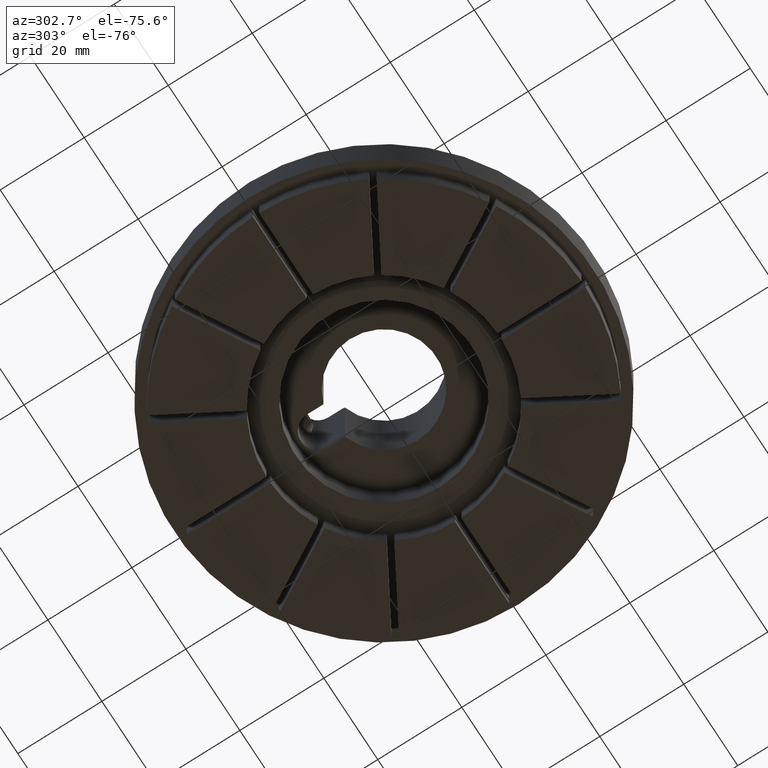
[diagram: clean part render]
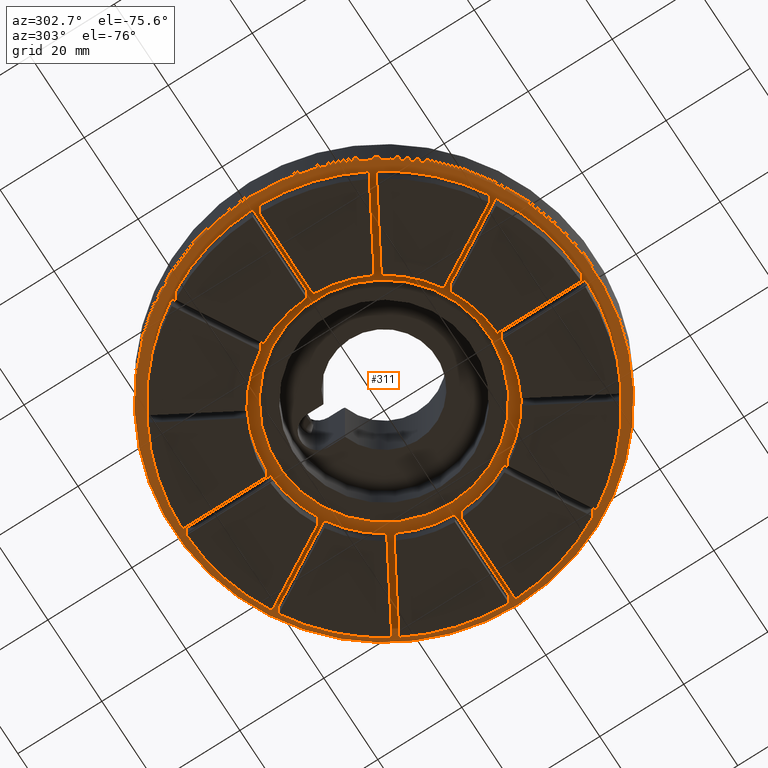
[diagram: same view with one face highlighted and labeled with its STEP entity id]
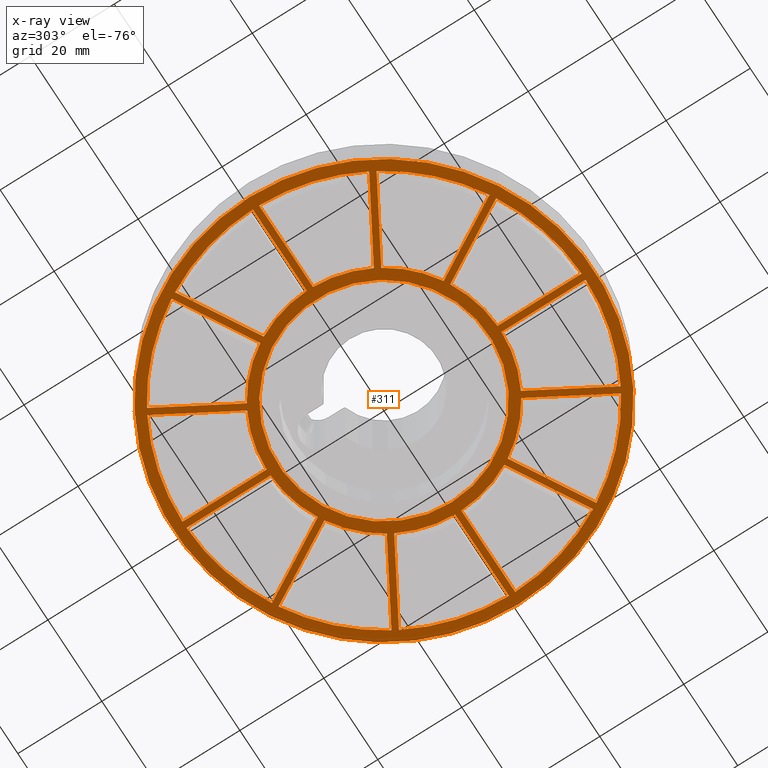
[diagram: x-ray of the same camera — body ghosted, the highlighted face saturated]
A machine part, auxiliary view. The second image highlights one B-rep face of the part: STEP entity #311.
The next image is the same camera in x-ray: the body ghosted, the highlighted face saturated — about 0% of this face is hidden behind the body in this view.
In plain terms, the highlighted planar face has unit normal (0, 0, 1).
Its self-contained STEP definition (entity closure, byte-faithful):
#311 = ADVANCED_FACE( '', ( #462, #463, #464, #465, #466, #467, #468, #469, #470, #471, #472, #473, #474, #475 ), #476, .F. );
#462 = FACE_BOUND( '', #674, .T. );
#463 = FACE_BOUND( '', #675, .T. );
#464 = FACE_BOUND( '', #676, .T. );
#465 = FACE_BOUND( '', #677, .T. );
#466 = FACE_BOUND( '', #678, .T. );
#467 = FACE_BOUND( '', #679, .T. );
#468 = FACE_OUTER_BOUND( '', #680, .T. );
#469 = FACE_BOUND( '', #681, .T. );
#470 = FACE_BOUND( '', #682, .T. );
#471 = FACE_BOUND( '', #683, .T. );
#472 = FACE_BOUND( '', #684, .T. );
#473 = FACE_BOUND( '', #685, .T. );
#474 = FACE_BOUND( '', #686, .T. );
#475 = FACE_BOUND( '', #687, .T. );
#476 = PLANE( '', #688 );
#674 = EDGE_LOOP( '', ( #939, #940, #941, #942 ) );
#675 = EDGE_LOOP( '', ( #943, #944, #945, #946 ) );
#676 = EDGE_LOOP( '', ( #947, #948, #949, #950 ) );
#677 = EDGE_LOOP( '', ( #951, #952, #953, #954 ) );
#678 = EDGE_LOOP( '', ( #955, #956, #957, #958 ) );
#679 = EDGE_LOOP( '', ( #959, #960, #961, #962 ) );
#680 = EDGE_LOOP( '', ( #963 ) );
#681 = EDGE_LOOP( '', ( #964 ) );
#682 = EDGE_LOOP( '', ( #965, #966, #967, #968 ) );
#683 = EDGE_LOOP( '', ( #969, #970, #971, #972 ) );
#684 = EDGE_LOOP( '', ( #973, #974, #975, #976 ) );
#685 = EDGE_LOOP( '', ( #977, #978, #979, #980 ) );
#686 = EDGE_LOOP( '', ( #981, #982, #983, #984 ) );
#687 = EDGE_LOOP( '', ( #985, #986, #987, #988 ) );
#688 = AXIS2_PLACEMENT_3D( '', #989, #990, #991 );
#939 = ORIENTED_EDGE( '', *, *, #1534, .F. );
#940 = ORIENTED_EDGE( '', *, *, #1535, .F. );
#941 = ORIENTED_EDGE( '', *, *, #1536, .F. );
#942 = ORIENTED_EDGE( '', *, *, #1537, .F. );
#943 = ORIENTED_EDGE( '', *, *, #1538, .F. );
#944 = ORIENTED_EDGE( '', *, *, #1539, .F. );
#945 = ORIENTED_EDGE( '', *, *, #1540, .F. );
#946 = ORIENTED_EDGE( '', *, *, #1541, .F. );
#947 = ORIENTED_EDGE( '', *, *, #1542, .F. );
#948 = ORIENTED_EDGE( '', *, *, #1543, .F. );
#949 = ORIENTED_EDGE( '', *, *, #1544, .F. );
#950 = ORIENTED_EDGE( '', *, *, #1545, .F. );
#951 = ORIENTED_EDGE( '', *, *, #1546, .F. );
#952 = ORIENTED_EDGE( '', *, *, #1547, .F. );
#953 = ORIENTED_EDGE( '', *, *, #1548, .F. );
#954 = ORIENTED_EDGE( '', *, *, #1549, .F. );
#955 = ORIENTED_EDGE( '', *, *, #1550, .F. );
#956 = ORIENTED_EDGE( '', *, *, #1551, .F. );
#957 = ORIENTED_EDGE( '', *, *, #1552, .F. );
#958 = ORIENTED_EDGE( '', *, *, #1553, .F. );
#959 = ORIENTED_EDGE( '', *, *, #1554, .F. );
#960 = ORIENTED_EDGE( '', *, *, #1555, .F. );
#961 = ORIENTED_EDGE( '', *, *, #1556, .F. );
#962 = ORIENTED_EDGE( '', *, *, #1557, .F. );
#963 = ORIENTED_EDGE( '', *, *, #1558, .F. );
#964 = ORIENTED_EDGE( '', *, *, #1559, .T. );
#965 = ORIENTED_EDGE( '', *, *, #1560, .F. );
#966 = ORIENTED_EDGE( '', *, *, #1561, .F. );
#967 = ORIENTED_EDGE( '', *, *, #1562, .F. );
#968 = ORIENTED_EDGE( '', *, *, #1563, .F. );
#969 = ORIENTED_EDGE( '', *, *, #1564, .F. );
#970 = ORIENTED_EDGE( '', *, *, #1565, .F. );
#971 = ORIENTED_EDGE( '', *, *, #1566, .F. );
#972 = ORIENTED_EDGE( '', *, *, #1567, .F. );
#973 = ORIENTED_EDGE( '', *, *, #1568, .F. );
#974 = ORIENTED_EDGE( '', *, *, #1569, .F. );
#975 = ORIENTED_EDGE( '', *, *, #1570, .F. );
#976 = ORIENTED_EDGE( '', *, *, #1571, .F. );
#977 = ORIENTED_EDGE( '', *, *, #1572, .F. );
#978 = ORIENTED_EDGE( '', *, *, #1573, .F. );
#979 = ORIENTED_EDGE( '', *, *, #1574, .F. );
#980 = ORIENTED_EDGE( '', *, *, #1575, .F. );
#981 = ORIENTED_EDGE( '', *, *, #1576, .F. );
#982 = ORIENTED_EDGE( '', *, *, #1577, .F. );
#983 = ORIENTED_EDGE( '', *, *, #1578, .F. );
#984 = ORIENTED_EDGE( '', *, *, #1579, .F. );
#985 = ORIENTED_EDGE( '', *, *, #1580, .F. );
#986 = ORIENTED_EDGE( '', *, *, #1581, .F. );
#987 = ORIENTED_EDGE( '', *, *, #1582, .F. );
#988 = ORIENTED_EDGE( '', *, *, #1583, .F. );
#989 = CARTESIAN_POINT( '', ( 0.000000000000000, 0.000000000000000, 6.00000000000000 ) );
#990 = DIRECTION( '', ( 0.000000000000000, 0.000000000000000, 1.00000000000000 ) );
#991 = DIRECTION( '', ( 1.00000000000000, 0.000000000000000, 0.000000000000000 ) );
#1534 = EDGE_CURVE( '', #1761, #1762, #1763, .F. );
#1535 = EDGE_CURVE( '', #1764, #1761, #1765, .T. );
#1536 = EDGE_CURVE( '', #1766, #1764, #1767, .T. );
#1537 = EDGE_CURVE( '', #1762, #1766, #1768, .T. );
#1538 = EDGE_CURVE( '', #1769, #1770, #1771, .F. );
#1539 = EDGE_CURVE( '', #1772, #1769, #1773, .T. );
#1540 = EDGE_CURVE( '', #1774, #1772, #1775, .T. );
#1541 = EDGE_CURVE( '', #1770, #1774, #1776, .T. );
#1542 = EDGE_CURVE( '', #1777, #1778, #1779, .F. );
#1543 = EDGE_CURVE( '', #1780, #1777, #1781, .T. );
#1544 = EDGE_CURVE( '', #1782, #1780, #1783, .T. );
#1545 = EDGE_CURVE( '', #1778, #1782, #1784, .T. );
#1546 = EDGE_CURVE( '', #1785, #1786, #1787, .F. );
#1547 = EDGE_CURVE( '', #1788, #1785, #1789, .T. );
#1548 = EDGE_CURVE( '', #1790, #1788, #1791, .T. );
#1549 = EDGE_CURVE( '', #1786, #1790, #1792, .T. );
#1550 = EDGE_CURVE( '', #1793, #1794, #1795, .F. );
#1551 = EDGE_CURVE( '', #1796, #1793, #1797, .T. );
#1552 = EDGE_CURVE( '', #1798, #1796, #1799, .T. );
#1553 = EDGE_CURVE( '', #1794, #1798, #1800, .T. );
#1554 = EDGE_CURVE( '', #1801, #1802, #1803, .F. );
#1555 = EDGE_CURVE( '', #1804, #1801, #1805, .T. );
#1556 = EDGE_CURVE( '', #1806, #1804, #1807, .T. );
#1557 = EDGE_CURVE( '', #1802, #1806, #1808, .T. );
#1558 = EDGE_CURVE( '', #1809, #1809, #1810, .T. );
#1559 = EDGE_CURVE( '', #1811, #1811, #1812, .T. );
#1560 = EDGE_CURVE( '', #1813, #1814, #1815, .F. );
#1561 = EDGE_CURVE( '', #1816, #1813, #1817, .T. );
#1562 = EDGE_CURVE( '', #1818, #1816, #1819, .T. );
#1563 = EDGE_CURVE( '', #1814, #1818, #1820, .T. );
#1564 = EDGE_CURVE( '', #1821, #1822, #1823, .F. );
#1565 = EDGE_CURVE( '', #1824, #1821, #1825, .T. );
#1566 = EDGE_CURVE( '', #1826, #1824, #1827, .T. );
#1567 = EDGE_CURVE( '', #1822, #1826, #1828, .T. );
#1568 = EDGE_CURVE( '', #1829, #1830, #1831, .F. );
#1569 = EDGE_CURVE( '', #1832, #1829, #1833, .T. );
#1570 = EDGE_CURVE( '', #1834, #1832, #1835, .T. );
#1571 = EDGE_CURVE( '', #1830, #1834, #1836, .T. );
#1572 = EDGE_CURVE( '', #1837, #1838, #1839, .F. );
#1573 = EDGE_CURVE( '', #1840, #1837, #1841, .T. );
#1574 = EDGE_CURVE( '', #1842, #1840, #1843, .T. );
#1575 = EDGE_CURVE( '', #1838, #1842, #1844, .T. );
#1576 = EDGE_CURVE( '', #1845, #1846, #1847, .F. );
#1577 = EDGE_CURVE( '', #1848, #1845, #1849, .T. );
#1578 = EDGE_CURVE( '', #1850, #1848, #1851, .T. );
#1579 = EDGE_CURVE( '', #1846, #1850, #1852, .T. );
#1580 = EDGE_CURVE( '', #1853, #1854, #1855, .F. );
#1581 = EDGE_CURVE( '', #1856, #1853, #1857, .T. );
#1582 = EDGE_CURVE( '', #1858, #1856, #1859, .T. );
#1583 = EDGE_CURVE( '', #1854, #1858, #1860, .T. );
#1761 = VERTEX_POINT( '', #2246 );
#1762 = VERTEX_POINT( '', #2247 );
#1763 = CIRCLE( '', #2248, 47.5000000000000 );
#1764 = VERTEX_POINT( '', #2249 );
#1765 = LINE( '', #2250, #2251 );
#1766 = VERTEX_POINT( '', #2252 );
#1767 = CIRCLE( '', #2253, 27.5000000000000 );
#1768 = LINE( '', #2254, #2255 );
#1769 = VERTEX_POINT( '', #2256 );
#1770 = VERTEX_POINT( '', #2257 );
#1771 = CIRCLE( '', #2258, 47.5000000000000 );
#1772 = VERTEX_POINT( '', #2259 );
#1773 = LINE( '', #2260, #2261 );
#1774 = VERTEX_POINT( '', #2262 );
#1775 = CIRCLE( '', #2263, 27.5000000000000 );
#1776 = LINE( '', #2264, #2265 );
#1777 = VERTEX_POINT( '', #2266 );
#1778 = VERTEX_POINT( '', #2267 );
#1779 = CIRCLE( '', #2268, 47.5000000000000 );
#1780 = VERTEX_POINT( '', #2269 );
#1781 = LINE( '', #2270, #2271 );
#1782 = VERTEX_POINT( '', #2272 );
#1783 = CIRCLE( '', #2273, 27.5000000000000 );
#1784 = LINE( '', #2274, #2275 );
#1785 = VERTEX_POINT( '', #2276 );
#1786 = VERTEX_POINT( '', #2277 );
#1787 = CIRCLE( '', #2278, 47.5000000000000 );
#1788 = VERTEX_POINT( '', #2279 );
#1789 = LINE( '', #2280, #2281 );
#1790 = VERTEX_POINT( '', #2282 );
#1791 = CIRCLE( '', #2283, 27.5000000000000 );
#1792 = LINE( '', #2284, #2285 );
#1793 = VERTEX_POINT( '', #2286 );
#1794 = VERTEX_POINT( '', #2287 );
#1795 = CIRCLE( '', #2288, 47.5000000000000 );
#1796 = VERTEX_POINT( '', #2289 );
#1797 = LINE( '', #2290, #2291 );
#1798 = VERTEX_POINT( '', #2292 );
#1799 = CIRCLE( '', #2293, 27.5000000000000 );
#1800 = LINE( '', #2294, #2295 );
#1801 = VERTEX_POINT( '', #2296 );
#1802 = VERTEX_POINT( '', #2297 );
#1803 = CIRCLE( '', #2298, 47.5000000000000 );
#1804 = VERTEX_POINT( '', #2299 );
#1805 = LINE( '', #2300, #2301 );
#1806 = VERTEX_POINT( '', #2302 );
#1807 = CIRCLE( '', #2303, 27.5000000000000 );
#1808 = LINE( '', #2304, #2305 );
#1809 = VERTEX_POINT( '', #2306 );
#1810 = CIRCLE( '', #2307, 50.0000000000000 );
#1811 = VERTEX_POINT( '', #2308 );
#1812 = CIRCLE( '', #2309, 25.0000000000000 );
#1813 = VERTEX_POINT( '', #2310 );
#1814 = VERTEX_POINT( '', #2311 );
#1815 = CIRCLE( '', #2312, 47.5000000000000 );
#1816 = VERTEX_POINT( '', #2313 );
#1817 = LINE( '', #2314, #2315 );
#1818 = VERTEX_POINT( '', #2316 );
#1819 = CIRCLE( '', #2317, 27.5000000000000 );
#1820 = LINE( '', #2318, #2319 );
#1821 = VERTEX_POINT( '', #2320 );
#1822 = VERTEX_POINT( '', #2321 );
#1823 = CIRCLE( '', #2322, 47.5000000000000 );
#1824 = VERTEX_POINT( '', #2323 );
#1825 = LINE( '', #2324, #2325 );
#1826 = VERTEX_POINT( '', #2326 );
#1827 = CIRCLE( '', #2327, 27.5000000000000 );
#1828 = LINE( '', #2328, #2329 );
#1829 = VERTEX_POINT( '', #2330 );
#1830 = VERTEX_POINT( '', #2331 );
#1831 = CIRCLE( '', #2332, 47.5000000000000 );
#1832 = VERTEX_POINT( '', #2333 );
#1833 = LINE( '', #2334, #2335 );
#1834 = VERTEX_POINT( '', #2336 );
#1835 = CIRCLE( '', #2337, 27.5000000000000 );
#1836 = LINE( '', #2338, #2339 );
#1837 = VERTEX_POINT( '', #2340 );
#1838 = VERTEX_POINT( '', #2341 );
#1839 = CIRCLE( '', #2342, 47.5000000000000 );
#1840 = VERTEX_POINT( '', #2343 );
#1841 = LINE( '', #2344, #2345 );
#1842 = VERTEX_POINT( '', #2346 );
#1843 = CIRCLE( '', #2347, 27.5000000000000 );
#1844 = LINE( '', #2348, #2349 );
#1845 = VERTEX_POINT( '', #2350 );
#1846 = VERTEX_POINT( '', #2351 );
#1847 = CIRCLE( '', #2352, 47.5000000000000 );
#1848 = VERTEX_POINT( '', #2353 );
#1849 = LINE( '', #2354, #2355 );
#1850 = VERTEX_POINT( '', #2356 );
#1851 = CIRCLE( '', #2357, 27.5000000000000 );
#1852 = LINE( '', #2358, #2359 );
#1853 = VERTEX_POINT( '', #2360 );
#1854 = VERTEX_POINT( '', #2361 );
#1855 = CIRCLE( '', #2362, 47.5000000000000 );
#1856 = VERTEX_POINT( '', #2363 );
#1857 = LINE( '', #2364, #2365 );
#1858 = VERTEX_POINT( '', #2366 );
#1859 = CIRCLE( '', #2367, 27.5000000000000 );
#1860 = LINE( '', #2368, #2369 );
#2246 = CARTESIAN_POINT( '', ( 40.7560785781263, -24.3965583419792, 6.00000000000001 ) );
#2247 = CARTESIAN_POINT( '', ( 24.3965583419792, -40.7560785781263, 6.00000000000000 ) );
#2248 = AXIS2_PLACEMENT_3D( '', #2743, #2744, #2745 );
#2249 = CARTESIAN_POINT( '', ( 23.4318398784887, -14.3944044652381, 6.00000000000000 ) );
#2250 = CARTESIAN_POINT( '', ( -0.375000000000004, -0.649519052838335, 6.00000000000000 ) );
#2251 = VECTOR( '', #2746, 1000.00000000000 );
#2252 = CARTESIAN_POINT( '', ( 14.3944044652381, -23.4318398784887, 6.00000000000001 ) );
#2253 = AXIS2_PLACEMENT_3D( '', #2747, #2748, #2749 );
#2254 = CARTESIAN_POINT( '', ( 0.649519052838330, 0.375000000000000, 6.00000000000000 ) );
#2255 = VECTOR( '', #2750, 1000.00000000000 );
#2256 = CARTESIAN_POINT( '', ( -0.750000000000035, -47.4940785782818, 6.00000000000001 ) );
#2257 = CARTESIAN_POINT( '', ( -23.0975202363026, -41.5060785781263, 6.00000000000000 ) );
#2258 = AXIS2_PLACEMENT_3D( '', #2751, #2752, #2753 );
#2259 = CARTESIAN_POINT( '', ( -0.750000000000025, -27.4897708247995, 6.00000000000000 ) );
#2260 = CARTESIAN_POINT( '', ( -0.750000000000007, 4.99600361081325E-016, 6.00000000000000 ) );
#2261 = VECTOR( '', #2754, 1000.00000000000 );
#2262 = CARTESIAN_POINT( '', ( -13.0953663595615, -24.1818398784887, 6.00000000000001 ) );
#2263 = AXIS2_PLACEMENT_3D( '', #2755, #2756, #2757 );
#2264 = CARTESIAN_POINT( '', ( 0.649519052838329, -0.375000000000001, 6.00000000000000 ) );
#2265 = VECTOR( '', #2758, 1000.00000000000 );
#2266 = CARTESIAN_POINT( '', ( -41.5060785781263, -23.0975202363025, 6.00000000000001 ) );
#2267 = CARTESIAN_POINT( '', ( -47.4940785782818, -0.749999999999994, 6.00000000000000 ) );
#2268 = AXIS2_PLACEMENT_3D( '', #2759, #2760, #2761 );
#2269 = CARTESIAN_POINT( '', ( -24.1818398784887, -13.0953663595614, 6.00000000000000 ) );
#2270 = CARTESIAN_POINT( '', ( -0.375000000000004, 0.649519052838336, 6.00000000000000 ) );
#2271 = VECTOR( '', #2762, 1000.00000000000 );
#2272 = CARTESIAN_POINT( '', ( -27.4897708247995, -0.749999999999997, 6.00000000000001 ) );
#2273 = AXIS2_PLACEMENT_3D( '', #2763, #2764, #2765 );
#2274 = CARTESIAN_POINT( '', ( -9.18485099360515E-017, -0.750000000000000, 6.00000000000000 ) );
#2275 = VECTOR( '', #2766, 1000.00000000000 );
#2276 = CARTESIAN_POINT( '', ( -40.7560785781263, 24.3965583419792, 6.00000000000001 ) );
#2277 = CARTESIAN_POINT( '', ( -24.3965583419792, 40.7560785781263, 6.00000000000000 ) );
#2278 = AXIS2_PLACEMENT_3D( '', #2767, #2768, #2769 );
#2279 = CARTESIAN_POINT( '', ( -23.4318398784887, 14.3944044652381, 6.00000000000000 ) );
#2280 = CARTESIAN_POINT( '', ( 0.375000000000004, 0.649519052838336, 6.00000000000000 ) );
#2281 = VECTOR( '', #2770, 1000.00000000000 );
#2282 = CARTESIAN_POINT( '', ( -14.3944044652381, 23.4318398784887, 6.00000000000001 ) );
#2283 = AXIS2_PLACEMENT_3D( '', #2771, #2772, #2773 );
#2284 = CARTESIAN_POINT( '', ( -0.649519052838330, -0.375000000000000, 6.00000000000000 ) );
#2285 = VECTOR( '', #2774, 1000.00000000000 );
#2286 = CARTESIAN_POINT( '', ( 0.750000000000015, 47.4940785782818, 6.00000000000001 ) );
#2287 = CARTESIAN_POINT( '', ( 23.0975202363026, 41.5060785781263, 6.00000000000000 ) );
#2288 = AXIS2_PLACEMENT_3D( '', #2775, #2776, #2777 );
#2289 = CARTESIAN_POINT( '', ( 0.750000000000016, 27.4897708247995, 6.00000000000000 ) );
#2290 = CARTESIAN_POINT( '', ( 0.750000000000009, -2.08166817117219E-016, 6.00000000000000 ) );
#2291 = VECTOR( '', #2778, 1000.00000000000 );
#2292 = CARTESIAN_POINT( '', ( 13.0953663595614, 24.1818398784887, 6.00000000000001 ) );
#2293 = AXIS2_PLACEMENT_3D( '', #2779, #2780, #2781 );
#2294 = CARTESIAN_POINT( '', ( -0.649519052838330, 0.375000000000000, 6.00000000000000 ) );
#2295 = VECTOR( '', #2782, 1000.00000000000 );
#2296 = CARTESIAN_POINT( '', ( 41.5060785781263, 23.0975202363026, 6.00000000000001 ) );
#2297 = CARTESIAN_POINT( '', ( 47.4940785782818, 0.750000000000000, 6.00000000000000 ) );
#2298 = AXIS2_PLACEMENT_3D( '', #2783, #2784, #2785 );
#2299 = CARTESIAN_POINT( '', ( 24.1818398784887, 13.0953663595614, 6.00000000000000 ) );
#2300 = CARTESIAN_POINT( '', ( 0.375000000000004, -0.649519052838336, 6.00000000000000 ) );
#2301 = VECTOR( '', #2786, 1000.00000000000 );
#2302 = CARTESIAN_POINT( '', ( 27.4897708247995, 0.750000000000000, 6.00000000000001 ) );
#2303 = AXIS2_PLACEMENT_3D( '', #2787, #2788, #2789 );
#2304 = CARTESIAN_POINT( '', ( 0.000000000000000, 0.750000000000000, 6.00000000000000 ) );
#2305 = VECTOR( '', #2790, 1000.00000000000 );
#2306 = CARTESIAN_POINT( '', ( 50.0000000000000, 0.000000000000000, 6.00000000000000 ) );
#2307 = AXIS2_PLACEMENT_3D( '', #2791, #2792, #2793 );
#2308 = CARTESIAN_POINT( '', ( 25.0000000000000, 0.000000000000000, 6.00000000000000 ) );
#2309 = AXIS2_PLACEMENT_3D( '', #2794, #2795, #2796 );
#2310 = CARTESIAN_POINT( '', ( 24.3965583419792, 40.7560785781263, 6.00000000000001 ) );
#2311 = CARTESIAN_POINT( '', ( 40.7560785781263, 24.3965583419792, 6.00000000000000 ) );
#2312 = AXIS2_PLACEMENT_3D( '', #2797, #2798, #2799 );
#2313 = CARTESIAN_POINT( '', ( 14.3944044652381, 23.4318398784887, 6.00000000000000 ) );
#2314 = CARTESIAN_POINT( '', ( 0.649519052838336, -0.375000000000004, 6.00000000000000 ) );
#2315 = VECTOR( '', #2800, 1000.00000000000 );
#2316 = CARTESIAN_POINT( '', ( 23.4318398784887, 14.3944044652381, 6.00000000000001 ) );
#2317 = AXIS2_PLACEMENT_3D( '', #2801, #2802, #2803 );
#2318 = CARTESIAN_POINT( '', ( -0.375000000000000, 0.649519052838330, 6.00000000000000 ) );
#2319 = VECTOR( '', #2804, 1000.00000000000 );
#2320 = CARTESIAN_POINT( '', ( -23.0975202363025, 41.5060785781263, 6.00000000000001 ) );
#2321 = CARTESIAN_POINT( '', ( -0.749999999999997, 47.4940785782818, 6.00000000000000 ) );
#2322 = AXIS2_PLACEMENT_3D( '', #2805, #2806, #2807 );
#2323 = CARTESIAN_POINT( '', ( -13.0953663595614, 24.1818398784887, 6.00000000000000 ) );
#2324 = CARTESIAN_POINT( '', ( 0.649519052838337, 0.375000000000005, 6.00000000000000 ) );
#2325 = VECTOR( '', #2808, 1000.00000000000 );
#2326 = CARTESIAN_POINT( '', ( -0.749999999999998, 27.4897708247995, 6.00000000000001 ) );
#2327 = AXIS2_PLACEMENT_3D( '', #2809, #2810, #2811 );
#2328 = CARTESIAN_POINT( '', ( -0.750000000000000, 4.59242549680257E-017, 6.00000000000000 ) );
#2329 = VECTOR( '', #2812, 1000.00000000000 );
#2330 = CARTESIAN_POINT( '', ( -47.4940785782818, 0.750000000000008, 6.00000000000001 ) );
#2331 = CARTESIAN_POINT( '', ( -41.5060785781263, 23.0975202363025, 6.00000000000000 ) );
#2332 = AXIS2_PLACEMENT_3D( '', #2813, #2814, #2815 );
#2333 = CARTESIAN_POINT( '', ( -27.4897708247995, 0.750000000000009, 6.00000000000000 ) );
#2334 = CARTESIAN_POINT( '', ( 4.16333634234438E-017, 0.750000000000008, 6.00000000000000 ) );
#2335 = VECTOR( '', #2816, 1000.00000000000 );
#2336 = CARTESIAN_POINT( '', ( -24.1818398784887, 13.0953663595614, 6.00000000000001 ) );
#2337 = AXIS2_PLACEMENT_3D( '', #2817, #2818, #2819 );
#2338 = CARTESIAN_POINT( '', ( -0.374999999999999, -0.649519052838327, 6.00000000000000 ) );
#2339 = VECTOR( '', #2820, 1000.00000000000 );
#2340 = CARTESIAN_POINT( '', ( -24.3965583419792, -40.7560785781263, 6.00000000000001 ) );
#2341 = CARTESIAN_POINT( '', ( -40.7560785781263, -24.3965583419792, 6.00000000000000 ) );
#2342 = AXIS2_PLACEMENT_3D( '', #2821, #2822, #2823 );
#2343 = CARTESIAN_POINT( '', ( -14.3944044652381, -23.4318398784887, 6.00000000000000 ) );
#2344 = CARTESIAN_POINT( '', ( -0.649519052838335, 0.375000000000004, 6.00000000000000 ) );
#2345 = VECTOR( '', #2824, 1000.00000000000 );
#2346 = CARTESIAN_POINT( '', ( -23.4318398784887, -14.3944044652381, 6.00000000000001 ) );
#2347 = AXIS2_PLACEMENT_3D( '', #2825, #2826, #2827 );
#2348 = CARTESIAN_POINT( '', ( 0.375000000000000, -0.649519052838330, 6.00000000000000 ) );
#2349 = VECTOR( '', #2828, 1000.00000000000 );
#2350 = CARTESIAN_POINT( '', ( 23.0975202363025, -41.5060785781263, 6.00000000000001 ) );
#2351 = CARTESIAN_POINT( '', ( 0.749999999999991, -47.4940785782818, 6.00000000000000 ) );
#2352 = AXIS2_PLACEMENT_3D( '', #2829, #2830, #2831 );
#2353 = CARTESIAN_POINT( '', ( 13.0953663595614, -24.1818398784887, 6.00000000000000 ) );
#2354 = CARTESIAN_POINT( '', ( -0.649519052838337, -0.375000000000004, 6.00000000000000 ) );
#2355 = VECTOR( '', #2832, 1000.00000000000 );
#2356 = CARTESIAN_POINT( '', ( 0.749999999999995, -27.4897708247995, 6.00000000000001 ) );
#2357 = AXIS2_PLACEMENT_3D( '', #2833, #2834, #2835 );
#2358 = CARTESIAN_POINT( '', ( 0.750000000000000, -1.37772764904077E-016, 6.00000000000000 ) );
#2359 = VECTOR( '', #2836, 1000.00000000000 );
#2360 = CARTESIAN_POINT( '', ( 47.4940785782818, -0.750000000000035, 6.00000000000001 ) );
#2361 = CARTESIAN_POINT( '', ( 41.5060785781263, -23.0975202363026, 6.00000000000000 ) );
#2362 = AXIS2_PLACEMENT_3D( '', #2837, #2838, #2839 );
#2363 = CARTESIAN_POINT( '', ( 27.4897708247995, -0.750000000000025, 6.00000000000000 ) );
#2364 = CARTESIAN_POINT( '', ( -4.99600361081325E-016, -0.750000000000007, 6.00000000000000 ) );
#2365 = VECTOR( '', #2840, 1000.00000000000 );
#2366 = CARTESIAN_POINT( '', ( 24.1818398784887, -13.0953663595615, 6.00000000000001 ) );
#2367 = AXIS2_PLACEMENT_3D( '', #2841, #2842, #2843 );
#2368 = CARTESIAN_POINT( '', ( 0.375000000000001, 0.649519052838329, 6.00000000000000 ) );
#2369 = VECTOR( '', #2844, 1000.00000000000 );
#2743 = CARTESIAN_POINT( '', ( 0.000000000000000, 0.000000000000000, 6.00000000000001 ) );
#2744 = DIRECTION( '', ( 0.000000000000000, 0.000000000000000, 1.00000000000000 ) );
#2745 = DIRECTION( '', ( 1.00000000000000, 0.000000000000000, -0.000000000000000 ) );
#2746 = DIRECTION( '', ( 0.866025403784439, -0.500000000000000, 0.000000000000000 ) );
#2747 = CARTESIAN_POINT( '', ( 0.000000000000000, 0.000000000000000, 6.00000000000001 ) );
#2748 = DIRECTION( '', ( 0.000000000000000, 0.000000000000000, 1.00000000000000 ) );
#2749 = DIRECTION( '', ( 1.00000000000000, 0.000000000000000, -0.000000000000000 ) );
#2750 = DIRECTION( '', ( -0.500000000000000, 0.866025403784439, 0.000000000000000 ) );
#2751 = CARTESIAN_POINT( '', ( 0.000000000000000, 0.000000000000000, 6.00000000000001 ) );
#2752 = DIRECTION( '', ( 0.000000000000000, 0.000000000000000, 1.00000000000000 ) );
#2753 = DIRECTION( '', ( 1.00000000000000, 0.000000000000000, -0.000000000000000 ) );
#2754 = DIRECTION( '', ( -6.66133814775094E-016, -1.00000000000000, 0.000000000000000 ) );
#2755 = CARTESIAN_POINT( '', ( 0.000000000000000, 0.000000000000000, 6.00000000000001 ) );
#2756 = DIRECTION( '', ( 0.000000000000000, 0.000000000000000, 1.00000000000000 ) );
#2757 = DIRECTION( '', ( 1.00000000000000, 0.000000000000000, -0.000000000000000 ) );
#2758 = DIRECTION( '', ( 0.500000000000000, 0.866025403784438, -0.000000000000000 ) );
#2759 = CARTESIAN_POINT( '', ( 0.000000000000000, 0.000000000000000, 6.00000000000001 ) );
#2760 = DIRECTION( '', ( 0.000000000000000, 0.000000000000000, 1.00000000000000 ) );
#2761 = DIRECTION( '', ( 1.00000000000000, 0.000000000000000, -0.000000000000000 ) );
#2762 = DIRECTION( '', ( -0.866025403784439, -0.500000000000000, 0.000000000000000 ) );
#2763 = CARTESIAN_POINT( '', ( 0.000000000000000, 0.000000000000000, 6.00000000000001 ) );
#2764 = DIRECTION( '', ( 0.000000000000000, 0.000000000000000, 1.00000000000000 ) );
#2765 = DIRECTION( '', ( 1.00000000000000, 0.000000000000000, -0.000000000000000 ) );
#2766 = DIRECTION( '', ( 1.00000000000000, -1.22464679914735E-016, 0.000000000000000 ) );
#2767 = CARTESIAN_POINT( '', ( 0.000000000000000, 0.000000000000000, 6.00000000000001 ) );
#2768 = DIRECTION( '', ( 0.000000000000000, 0.000000000000000, 1.00000000000000 ) );
#2769 = DIRECTION( '', ( 1.00000000000000, 0.000000000000000, -0.000000000000000 ) );
#2770 = DIRECTION( '', ( -0.866025403784438, 0.500000000000000, 0.000000000000000 ) );
#2771 = CARTESIAN_POINT( '', ( 0.000000000000000, 0.000000000000000, 6.00000000000001 ) );
#2772 = DIRECTION( '', ( 0.000000000000000, 0.000000000000000, 1.00000000000000 ) );
#2773 = DIRECTION( '', ( 1.00000000000000, 0.000000000000000, -0.000000000000000 ) );
#2774 = DIRECTION( '', ( 0.500000000000000, -0.866025403784439, 0.000000000000000 ) );
#2775 = CARTESIAN_POINT( '', ( 0.000000000000000, 0.000000000000000, 6.00000000000001 ) );
#2776 = DIRECTION( '', ( 0.000000000000000, 0.000000000000000, 1.00000000000000 ) );
#2777 = DIRECTION( '', ( 1.00000000000000, 0.000000000000000, -0.000000000000000 ) );
#2778 = DIRECTION( '', ( 2.77555756156289E-016, 1.00000000000000, -0.000000000000000 ) );
#2779 = CARTESIAN_POINT( '', ( 0.000000000000000, 0.000000000000000, 6.00000000000001 ) );
#2780 = DIRECTION( '', ( 0.000000000000000, 0.000000000000000, 1.00000000000000 ) );
#2781 = DIRECTION( '', ( 1.00000000000000, 0.000000000000000, -0.000000000000000 ) );
#2782 = DIRECTION( '', ( -0.500000000000000, -0.866025403784439, 0.000000000000000 ) );
#2783 = CARTESIAN_POINT( '', ( 0.000000000000000, 0.000000000000000, 6.00000000000001 ) );
#2784 = DIRECTION( '', ( 0.000000000000000, 0.000000000000000, 1.00000000000000 ) );
#2785 = DIRECTION( '', ( 1.00000000000000, 0.000000000000000, -0.000000000000000 ) );
#2786 = DIRECTION( '', ( 0.866025403784439, 0.500000000000000, -0.000000000000000 ) );
#2787 = CARTESIAN_POINT( '', ( 0.000000000000000, 0.000000000000000, 6.00000000000001 ) );
#2788 = DIRECTION( '', ( 0.000000000000000, 0.000000000000000, 1.00000000000000 ) );
#2789 = DIRECTION( '', ( 1.00000000000000, 0.000000000000000, -0.000000000000000 ) );
#2790 = DIRECTION( '', ( -1.00000000000000, 0.000000000000000, 0.000000000000000 ) );
#2791 = CARTESIAN_POINT( '', ( 0.000000000000000, 0.000000000000000, 6.00000000000000 ) );
#2792 = DIRECTION( '', ( 0.000000000000000, 0.000000000000000, 1.00000000000000 ) );
#2793 = DIRECTION( '', ( 1.00000000000000, 0.000000000000000, 0.000000000000000 ) );
#2794 = CARTESIAN_POINT( '', ( 0.000000000000000, 0.000000000000000, 6.00000000000000 ) );
#2795 = DIRECTION( '', ( 0.000000000000000, 0.000000000000000, 1.00000000000000 ) );
#2796 = DIRECTION( '', ( 1.00000000000000, 0.000000000000000, 0.000000000000000 ) );
#2797 = CARTESIAN_POINT( '', ( 0.000000000000000, 0.000000000000000, 6.00000000000001 ) );
#2798 = DIRECTION( '', ( 0.000000000000000, 0.000000000000000, 1.00000000000000 ) );
#2799 = DIRECTION( '', ( 1.00000000000000, 0.000000000000000, -0.000000000000000 ) );
#2800 = DIRECTION( '', ( 0.500000000000000, 0.866025403784438, -0.000000000000000 ) );
#2801 = CARTESIAN_POINT( '', ( 0.000000000000000, 0.000000000000000, 6.00000000000001 ) );
#2802 = DIRECTION( '', ( 0.000000000000000, 0.000000000000000, 1.00000000000000 ) );
#2803 = DIRECTION( '', ( 1.00000000000000, 0.000000000000000, -0.000000000000000 ) );
#2804 = DIRECTION( '', ( -0.866025403784439, -0.500000000000000, 0.000000000000000 ) );
#2805 = CARTESIAN_POINT( '', ( 0.000000000000000, 0.000000000000000, 6.00000000000001 ) );
#2806 = DIRECTION( '', ( 0.000000000000000, 0.000000000000000, 1.00000000000000 ) );
#2807 = DIRECTION( '', ( 1.00000000000000, 0.000000000000000, -0.000000000000000 ) );
#2808 = DIRECTION( '', ( -0.500000000000000, 0.866025403784439, 0.000000000000000 ) );
#2809 = CARTESIAN_POINT( '', ( 0.000000000000000, 0.000000000000000, 6.00000000000001 ) );
#2810 = DIRECTION( '', ( 0.000000000000000, 0.000000000000000, 1.00000000000000 ) );
#2811 = DIRECTION( '', ( 1.00000000000000, 0.000000000000000, -0.000000000000000 ) );
#2812 = DIRECTION( '', ( -6.12323399573677E-017, -1.00000000000000, 0.000000000000000 ) );
#2813 = CARTESIAN_POINT( '', ( 0.000000000000000, 0.000000000000000, 6.00000000000001 ) );
#2814 = DIRECTION( '', ( 0.000000000000000, 0.000000000000000, 1.00000000000000 ) );
#2815 = DIRECTION( '', ( 1.00000000000000, 0.000000000000000, -0.000000000000000 ) );
#2816 = DIRECTION( '', ( -1.00000000000000, 5.55111512312578E-017, 0.000000000000000 ) );
#2817 = CARTESIAN_POINT( '', ( 0.000000000000000, 0.000000000000000, 6.00000000000001 ) );
#2818 = DIRECTION( '', ( 0.000000000000000, 0.000000000000000, 1.00000000000000 ) );
#2819 = DIRECTION( '', ( 1.00000000000000, 0.000000000000000, -0.000000000000000 ) );
#2820 = DIRECTION( '', ( 0.866025403784439, -0.500000000000000, 0.000000000000000 ) );
#2821 = CARTESIAN_POINT( '', ( 0.000000000000000, 0.000000000000000, 6.00000000000001 ) );
#2822 = DIRECTION( '', ( 0.000000000000000, 0.000000000000000, 1.00000000000000 ) );
#2823 = DIRECTION( '', ( 1.00000000000000, 0.000000000000000, -0.000000000000000 ) );
#2824 = DIRECTION( '', ( -0.500000000000000, -0.866025403784439, 0.000000000000000 ) );
#2825 = CARTESIAN_POINT( '', ( 0.000000000000000, 0.000000000000000, 6.00000000000001 ) );
#2826 = DIRECTION( '', ( 0.000000000000000, 0.000000000000000, 1.00000000000000 ) );
#2827 = DIRECTION( '', ( 1.00000000000000, 0.000000000000000, -0.000000000000000 ) );
#2828 = DIRECTION( '', ( 0.866025403784439, 0.500000000000000, -0.000000000000000 ) );
#2829 = CARTESIAN_POINT( '', ( 0.000000000000000, 0.000000000000000, 6.00000000000001 ) );
#2830 = DIRECTION( '', ( 0.000000000000000, 0.000000000000000, 1.00000000000000 ) );
#2831 = DIRECTION( '', ( 1.00000000000000, 0.000000000000000, -0.000000000000000 ) );
#2832 = DIRECTION( '', ( 0.500000000000000, -0.866025403784439, 0.000000000000000 ) );
#2833 = CARTESIAN_POINT( '', ( 0.000000000000000, 0.000000000000000, 6.00000000000001 ) );
#2834 = DIRECTION( '', ( 0.000000000000000, 0.000000000000000, 1.00000000000000 ) );
#2835 = DIRECTION( '', ( 1.00000000000000, 0.000000000000000, -0.000000000000000 ) );
#2836 = DIRECTION( '', ( 1.83697019872103E-016, 1.00000000000000, -0.000000000000000 ) );
#2837 = CARTESIAN_POINT( '', ( 0.000000000000000, 0.000000000000000, 6.00000000000001 ) );
#2838 = DIRECTION( '', ( 0.000000000000000, 0.000000000000000, 1.00000000000000 ) );
#2839 = DIRECTION( '', ( 1.00000000000000, 0.000000000000000, -0.000000000000000 ) );
#2840 = DIRECTION( '', ( 1.00000000000000, -6.66133814775094E-016, 0.000000000000000 ) );
#2841 = CARTESIAN_POINT( '', ( 0.000000000000000, 0.000000000000000, 6.00000000000001 ) );
#2842 = DIRECTION( '', ( 0.000000000000000, 0.000000000000000, 1.00000000000000 ) );
#2843 = DIRECTION( '', ( 1.00000000000000, 0.000000000000000, -0.000000000000000 ) );
#2844 = DIRECTION( '', ( -0.866025403784438, 0.500000000000000, 0.000000000000000 ) );